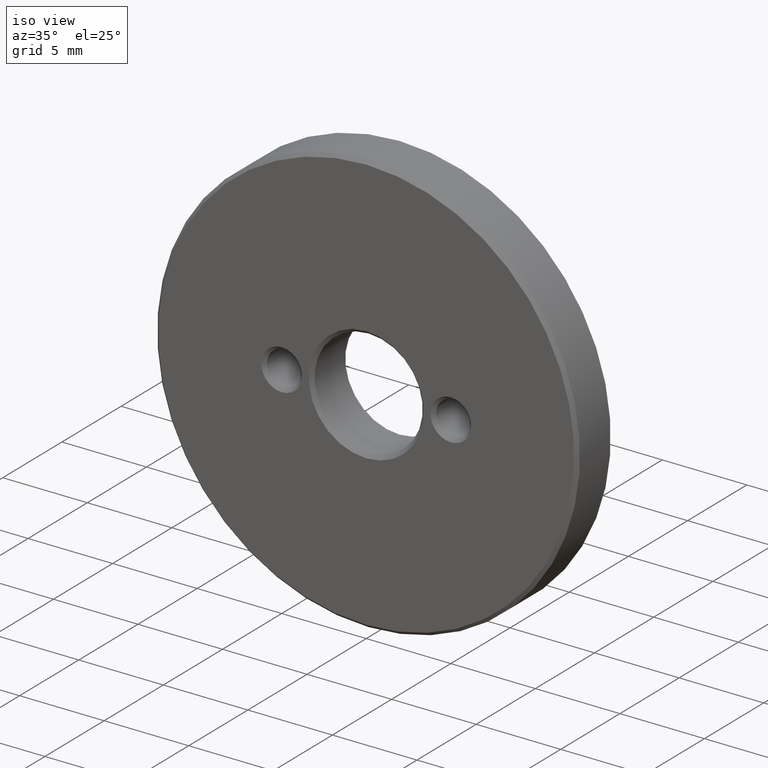
[diagram: clean part render]
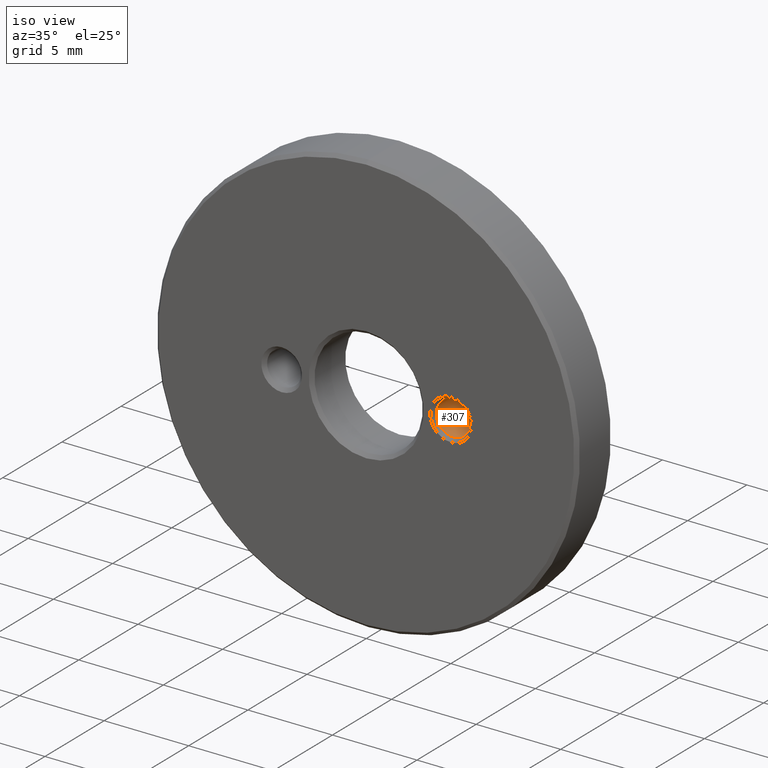
[diagram: same view with one face highlighted and labeled with its STEP entity id]
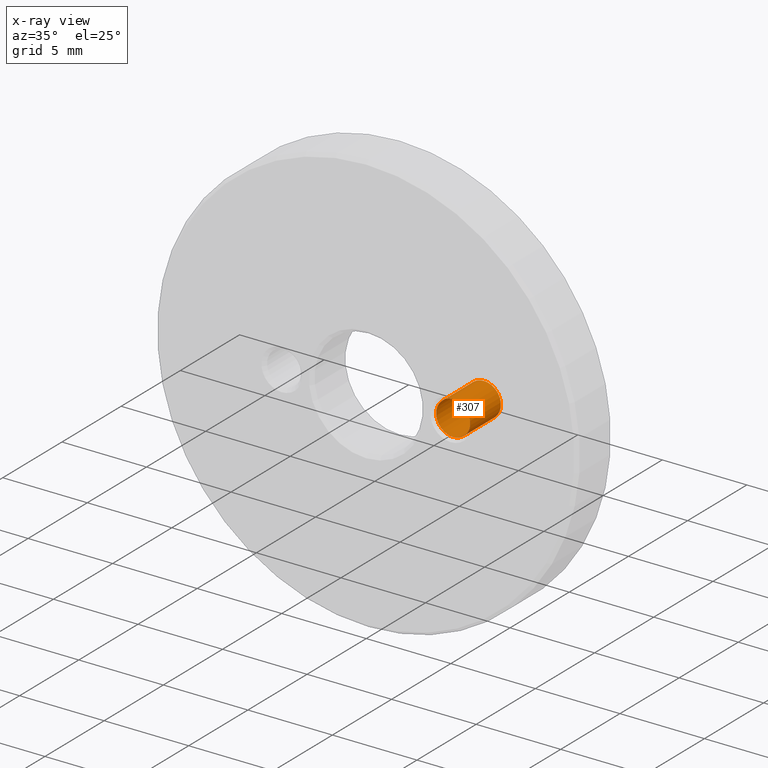
[diagram: x-ray of the same camera — body ghosted, the highlighted face saturated]
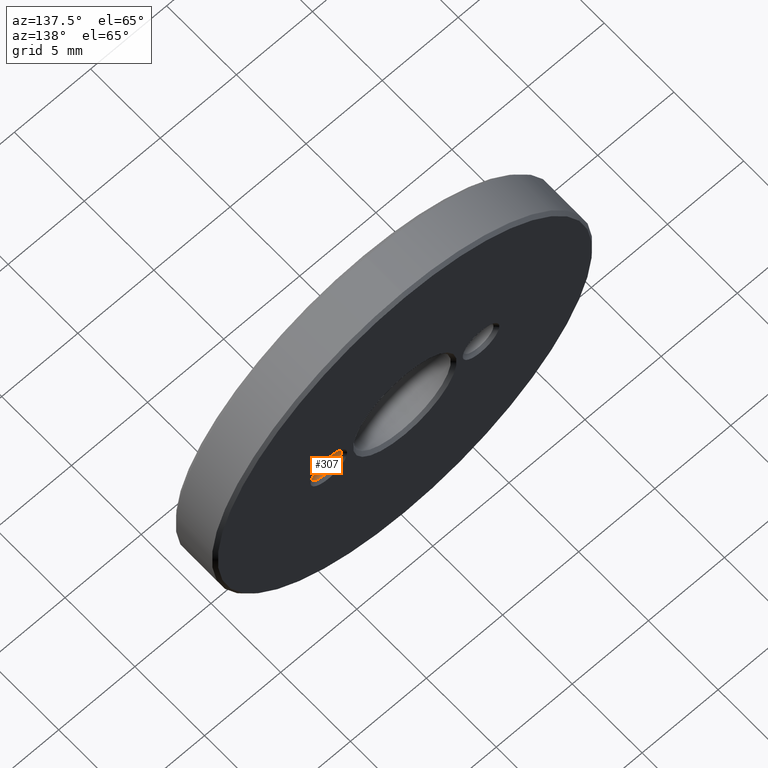
[diagram: same view with one face highlighted and labeled with its STEP entity id]
A machine part, iso view. The second image highlights one B-rep face of the part: STEP entity #307.
The next image is the same camera in x-ray: the body ghosted, the highlighted face saturated — about 0% of this face is hidden behind the body in this view.
A second angle (auxiliary view) of the same face is appended — the face is thin or edge-on in the first view.
In plain terms, the highlighted cylindrical surface (bore or boss wall) has radius 1.005 mm, axis along (-0, -1, -0).
Its self-contained STEP definition (entity closure, byte-faithful):
#5 = CARTESIAN_POINT ( 'NONE',  ( 5.000000000000000000, 3.000000000000000000, -1.836970198721029194E-15 ) ) ;
#33 = DIRECTION ( 'NONE',  ( 0.000000000000000000, 0.000000000000000000, 1.000000000000000000 ) ) ;
#43 = DIRECTION ( 'NONE',  ( 0.000000000000000000, 0.000000000000000000, -1.000000000000000000 ) ) ;
#54 = CIRCLE ( 'NONE', #104, 1.004999999999999893 ) ;
#61 = CARTESIAN_POINT ( 'NONE',  ( 5.000000000000000000, 0.1999999999999944600, -1.836970198721029194E-15 ) ) ;
#65 = DIRECTION ( 'NONE',  ( -0.000000000000000000, -1.000000000000000000, -0.000000000000000000 ) ) ;
#104 = AXIS2_PLACEMENT_3D ( 'NONE', #255, #128, #252 ) ;
#119 = AXIS2_PLACEMENT_3D ( 'NONE', #61, #310, #33 ) ;
#128 = DIRECTION ( 'NONE',  ( 0.000000000000000000, 1.000000000000000000, 0.000000000000000000 ) ) ;
#130 = ORIENTED_EDGE ( 'NONE', *, *, #206, .T. ) ;
#132 = ORIENTED_EDGE ( 'NONE', *, *, #379, .T. ) ;
#157 = AXIS2_PLACEMENT_3D ( 'NONE', #5, #65, #43 ) ;
#197 = VERTEX_POINT ( 'NONE', #323 ) ;
#206 = EDGE_CURVE ( 'NONE', #197, #197, #289, .T. ) ;
#243 = EDGE_LOOP ( 'NONE', ( #132 ) ) ;
#252 = DIRECTION ( 'NONE',  ( 0.000000000000000000, 0.000000000000000000, 1.000000000000000000 ) ) ;
#255 = CARTESIAN_POINT ( 'NONE',  ( 5.000000000000000000, 2.800000000000007372, -1.836970198721029194E-15 ) ) ;
#271 = VERTEX_POINT ( 'NONE', #332 ) ;
#275 = FACE_OUTER_BOUND ( 'NONE', #389, .T. ) ;
#276 = FACE_OUTER_BOUND ( 'NONE', #243, .T. ) ;
#289 = CIRCLE ( 'NONE', #119, 1.004999999999999893 ) ;
#306 = CYLINDRICAL_SURFACE ( 'NONE', #157, 1.004999999999999893 ) ;
#307 = ADVANCED_FACE ( 'NONE', ( #275, #276 ), #306, .F. ) ;
#310 = DIRECTION ( 'NONE',  ( -0.000000000000000000, -1.000000000000000000, -0.000000000000000000 ) ) ;
#323 = CARTESIAN_POINT ( 'NONE',  ( 5.000000000000000000, 0.1999999999999944600, 1.004999999999998117 ) ) ;
#332 = CARTESIAN_POINT ( 'NONE',  ( 5.000000000000000000, 2.800000000000007372, 1.004999999999998117 ) ) ;
#379 = EDGE_CURVE ( 'NONE', #271, #271, #54, .T. ) ;
#389 = EDGE_LOOP ( 'NONE', ( #130 ) ) ;